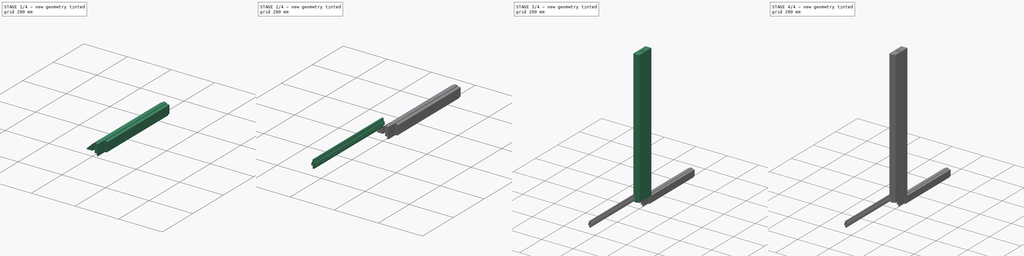
[diagram: build sequence overview — one tinted view per stage of 4, left to right]
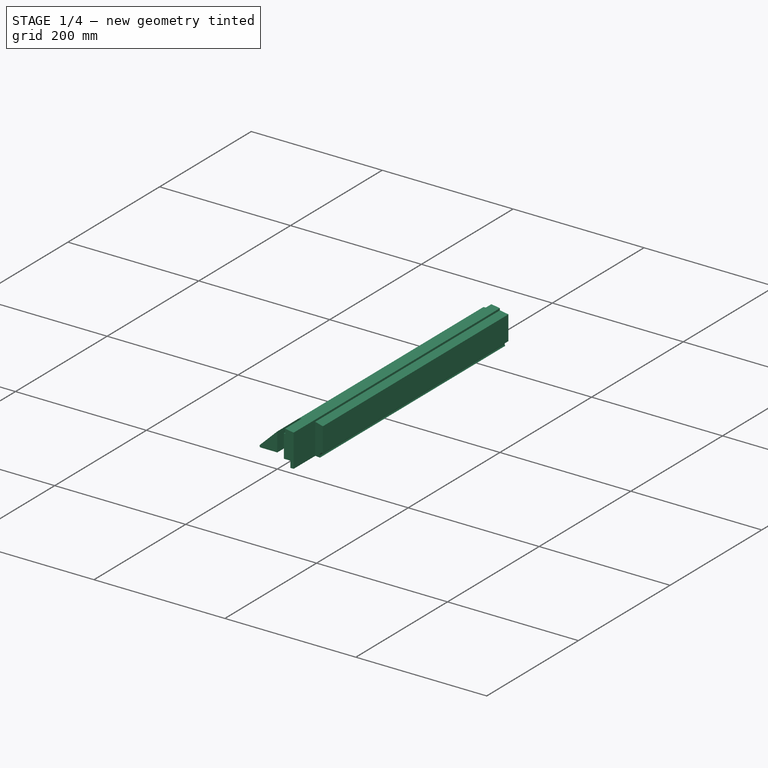
[diagram: stage 1 of 4 — iso view after this stage's code; geometry added in this stage tinted green]
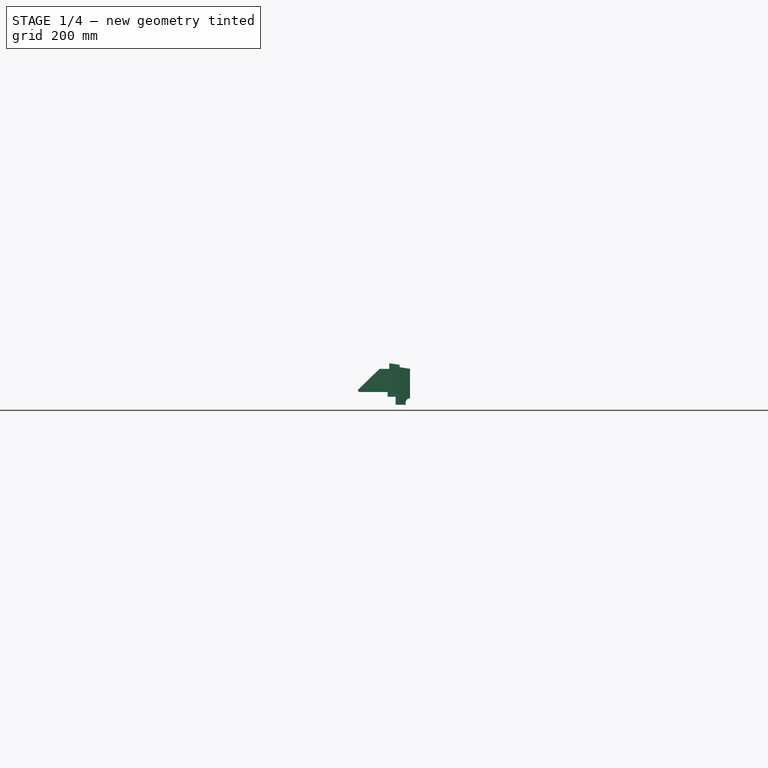
[diagram: stage 1 of 4 — front view after this stage's code; geometry added in this stage tinted green]
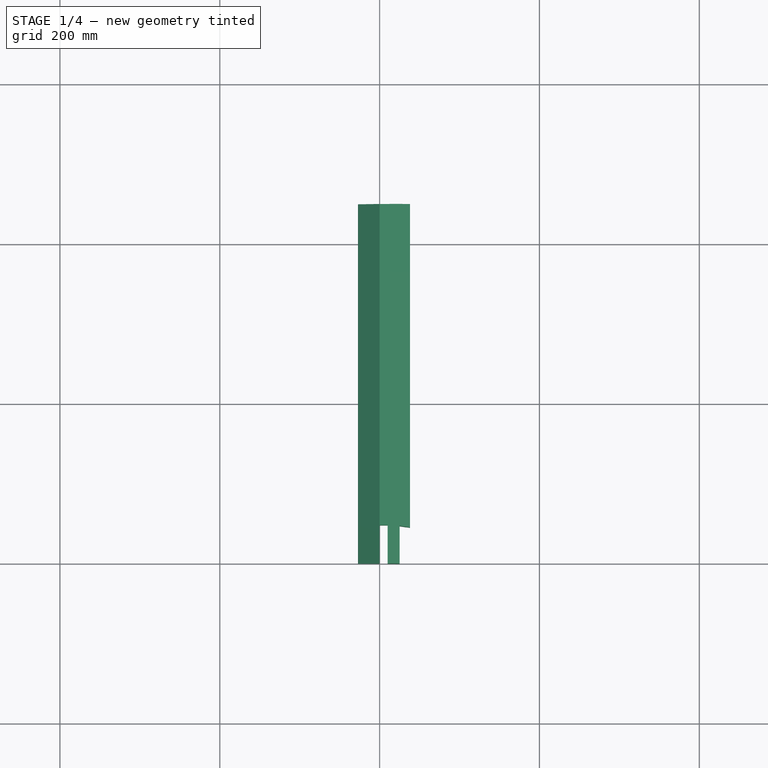
[diagram: stage 1 of 4 — top view after this stage's code; geometry added in this stage tinted green]
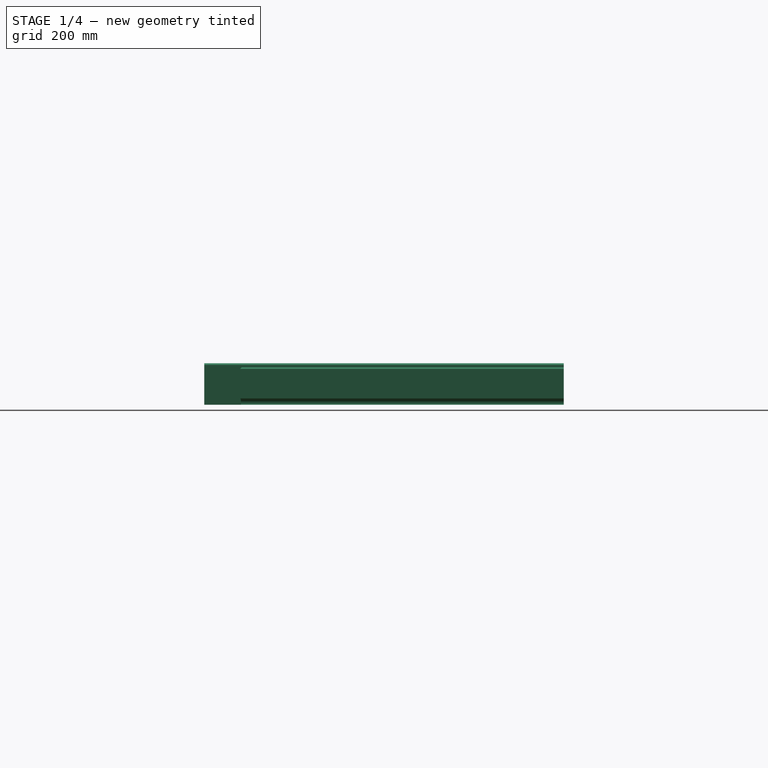
[diagram: stage 1 of 4 — right view after this stage's code; geometry added in this stage tinted green]
FCSTD DOCUMENT  (FreeCAD 2022.709R28846 (Git))
Label: window_part
License: All rights reserved
LicenseURL: http://en.wikipedia.org/wiki/All_rights_reserved
objects: PartDesign::CoordinateSystem×17, Sketcher::SketchObject×11, PartDesign::Body×7, App::Part×7, PartDesign::Pad×6, PartDesign::Pocket×4, PartDesign::Mirrored×2, PartDesign::Revolution×1
note: 74 computed .brp shape members not serialized (recipe doc carries the construction recipe); baked Part::Feature solids carry a one-line shape summary decoded from their .brp

FEATURE [PartDesign::Body] sprosse
  AutoGroupSolids = false
  ClaimAllChildren = false
  ExportMode = 0
  Group = -> [LCS_0005,Sketch007,Pad004,Mirrored]
  Origin = -> Origin
  Tip = -> Mirrored
  TreeRank = 212
  _ExportChildren = -> [LCS_0005,Pad004,Mirrored]
  _GroupVersion = 1
FEATURE [App::Part] Part_2  label="sprosse001"
  ClaimAllChildren = false
  ExportMode = 1
  Group = -> [LCS_0,sprosse]
  Origin = -> Origin011
  TreeRank = 200
  _ExportChildren = -> [LCS_0,sprosse]
  _GroupVersion = 1
FEATURE [Sketcher::SketchObject] Sketch008
  ArcFitTolerance = 1e-06
  AttachmentOffset = pos=(0,0,0) rot=(1,0,0;1.5708rad)
  AttachmentSupport = -> [XZ_Plane013]
  FullyConstrained = true
  MapMode = 4
  Placement = pos=(0,0,0) rot=(0.57735,0.57735,0.57735;4.18879rad)
  Support = -> [XZ_Plane013]
  TreeRank = 233
  sketch-geometry (15):
    g0: LineSegment StartX=0 StartY=0 StartZ=0 EndX=0 EndY=12 EndZ=0
    g1: LineSegment StartX=0 StartY=12 StartZ=0 EndX=7 EndY=12 EndZ=0
    g2: LineSegment StartX=7 StartY=12 StartZ=0 EndX=5 EndY=25 EndZ=0
    g3: LineSegment StartX=5 StartY=25 StartZ=0 EndX=2 EndY=25 EndZ=0
    g4: LineSegment StartX=2 StartY=25 StartZ=0 EndX=0 EndY=38 EndZ=0
    g5: LineSegment StartX=-1e-16 StartY=38 StartZ=0 EndX=-37 EndY=38 EndZ=0
    g6: ArcOfCircle CenterX=-42.5625 CenterY=38 CenterZ=0 NormalX=0 NormalY=0 NormalZ=1 AngleXU=0 Radius=5.5625 StartAngle=4.25879 EndAngle=6.28319
    g7: LineSegment StartX=-45 StartY=33 StartZ=0 EndX=-45 EndY=20 EndZ=0
    g8: LineSegment StartX=-45 StartY=20 StartZ=0 EndX=-35 EndY=20 EndZ=0
    g9: LineSegment StartX=-35 StartY=20 StartZ=0 EndX=-35 EndY=10 EndZ=0
    g10: LineSegment StartX=-35 StartY=10 StartZ=0 EndX=-29 EndY=10 EndZ=0
    g11: LineSegment StartX=-29 StartY=10 StartZ=0 EndX=-29 EndY=-25.0534 EndZ=0
    g12: LineSegment StartX=-25.562 StartY=-26.4435 StartZ=0 EndX=0 EndY=0 EndZ=0
    g13: ArcOfCircle CenterX=-27 CenterY=-25.0534 CenterZ=0 NormalX=0 NormalY=0 NormalZ=1 AngleXU=0 Radius=2 StartAngle=3.14159 EndAngle=5.51473
    g14: GeomPoint [constr] X=-29 Y=-30 Z=0
  constraints (42):
    c: Vertical(g0)
    c: Coincident(g0,g1)
    c: Horizontal(g1)
    c: Coincident(g1,g2)
    c: Coincident(g2,g3)
    c: Coincident(g3,g4)
    c: Coincident(g4,g5)
    c: Horizontal(g5)
    c: Perpendicular(g5,g6) = 4.71239
    c: Coincident(g6,g7)
    c: Coincident(g7,g8)
    c: Coincident(g8,g9)
    c: Vertical(g9)
    c: Coincident(g9,g10)
    c: Horizontal(g10)
    c: Coincident(g10,g11)
    c: Vertical(g11)
    c: Vertical(g7)
    c: Horizontal(g8)
    c: DistanceY(g4,g4) = 13
    c: DistanceY(g2,g2) = 13
    c: DistanceY(g0,g0) = 12
    c: DistanceX(g3,g3) = 3
    c: DistanceX(g4,g4) = 2
    c: DistanceX(g2,g2) = 2
    c: DistanceX(g1,g1) = 7
    c: Coincident(g0,g-1)
    c: Coincident(g12,g0)
    c: DistanceX(g8,g8) = 10
    c: DistanceX(g10,g10) = 6
    c: DistanceY(g9,g9) = 10
    c: Horizontal(g3)
    c: DistanceY(g0,g10) = 10
    c: DistanceX(g6,g5) = 8
    c: DistanceY(g6,g5) = 5
    c: DistanceX(g6,g4) = 45
    c: DistanceY(g14,g0) = 30
    c: PointOnObject(g14,g11)
    c: PointOnObject(g14,g12)
    c: Tangent(g11,g13) = -1.5708
    c: Tangent(g12,g13) = -1.5708
    c: Radius(g13) = 2
FEATURE [PartDesign::Pad] Pad005
  ClaimChildren = false
  Direction = (1,1,1)
  Fit = 0
  FitJoin = 0
  InnerFit = 0
  InnerFitJoin = 0
  InnerTaperAngle = 0
  InnerTaperAngleRev = 0
  Length = 450
  Length2 = 100
  Linearize = true
  NewSolid = false
  Placement = pos=(0,0,0) rot=(1,0,0;1.5708rad)
  Profile = -> Sketch008
  Suppress = false
  TreeRank = 234
  Type = 0
  _ProfileBasedVersion = 1
FEATURE [Sketcher::SketchObject] Sketch010
  ArcFitTolerance = 1e-06
  AttachmentOffset = pos=(0,0,10) rot=(0,0,1;0rad)
  AttachmentSupport = -> [XY_Plane013]
  FullyConstrained = true
  MapMode = 2
  Placement = pos=(0,0,10) rot=(0,0,1;0rad)
  Support = -> [XY_Plane013]
  TreeRank = 254
  sketch-geometry (7):
    g0: LineSegment StartX=25 StartY=0 StartZ=0 EndX=25 EndY=47.1538 EndZ=0
    g1: LineSegment StartX=25 StartY=47.1538 StartZ=0 EndX=39 EndY=45 EndZ=0
    g2: LineSegment StartX=39 StartY=45 StartZ=0 EndX=39 EndY=0 EndZ=0
    g3: LineSegment StartX=39 StartY=0 StartZ=0 EndX=25 EndY=0 EndZ=0
    g4: LineSegment [constr] StartX=39 StartY=45 StartZ=0 EndX=25 EndY=45 EndZ=0
    g5: GeomPoint [constr] X=26 Y=45 Z=0
    g6: GeomPoint [constr] X=26 Y=47 Z=0
  constraints (19):
    c: PointOnObject(g0,g-1)
    c: Vertical(g0)
    c: Coincident(g0,g1)
    c: Coincident(g1,g2)
    c: PointOnObject(g2,g-1)
    c: Vertical(g2)
    c: Coincident(g2,g3)
    c: Coincident(g3,g0)
    c: DistanceX(g3,g3) = 14
    c: DistanceY(g2,g2) = 45
    c: DistanceX(g-1,g0) = 25
    c: Coincident(g4,g1)
    c: PointOnObject(g4,g0)
    c: Horizontal(g4)
    c: PointOnObject(g5,g4)
    c: DistanceX(g5,g1) = 13
    c: PointOnObject(g6,g1)
    c: DistanceY(g5,g6) = 2
    c: Vertical(g5,g6)
FEATURE [PartDesign::Pocket] Pocket002
  BaseFeature = -> Pad005
  ClaimChildren = false
  Fit = 0
  FitJoin = 0
  InnerFit = 0
  InnerFitJoin = 0
  InnerTaperAngle = 0
  InnerTaperAngleRev = 0
  Length = 60
  Length2 = 100
  Linearize = true
  NewSolid = false
  Placement = pos=(0,0,0) rot=(1,0,0;1.5708rad)
  Profile = -> Sketch010
  Suppress = false
  TreeRank = 255
  Type = 0
  _ProfileBasedVersion = 1
FEATURE [Sketcher::SketchObject] Sketch011
  ArcFitTolerance = 1e-06
  AttachmentOffset = pos=(0,0,10) rot=(0,0,1;0rad)
  AttachmentSupport = -> [XY_Plane013]
  FullyConstrained = true
  MapMode = 2
  Placement = pos=(0,0,10) rot=(0,0,1;0rad)
  Support = -> [XY_Plane013]
  TreeRank = 256
  sketch-geometry (4):
    g0: LineSegment StartX=0 StartY=0 StartZ=0 EndX=10 EndY=0 EndZ=0
    g1: LineSegment StartX=10 StartY=0 StartZ=0 EndX=10 EndY=48 EndZ=0
    g2: LineSegment StartX=10 StartY=48 StartZ=0 EndX=0 EndY=48 EndZ=0
    g3: LineSegment StartX=0 StartY=48 StartZ=0 EndX=0 EndY=0 EndZ=0
  constraints (11):
    c: Coincident(g0,g1)
    c: Coincident(g1,g2)
    c: Coincident(g2,g3)
    c: Coincident(g3,g0)
    c: Horizontal(g0)
    c: Horizontal(g2)
    c: Vertical(g1)
    c: Vertical(g3)
    c: Coincident(g0,g-1)
    c: DistanceX(g0,g0) = 10
    c: DistanceY(g3,g3) = 48
FEATURE [PartDesign::Pocket] Pocket003
  BaseFeature = -> Pocket002
  ClaimChildren = false
  Fit = 0
  FitJoin = 0
  InnerFit = 0
  InnerFitJoin = 0
  InnerTaperAngle = 0
  InnerTaperAngleRev = 0
  Length = 60
  Length2 = 100
  Linearize = true
  NewSolid = false
  Placement = pos=(0,0,0) rot=(1,0,0;1.5708rad)
  Profile = -> Sketch011
  Suppress = false
  TreeRank = 257
  Type = 0
  _ProfileBasedVersion = 1
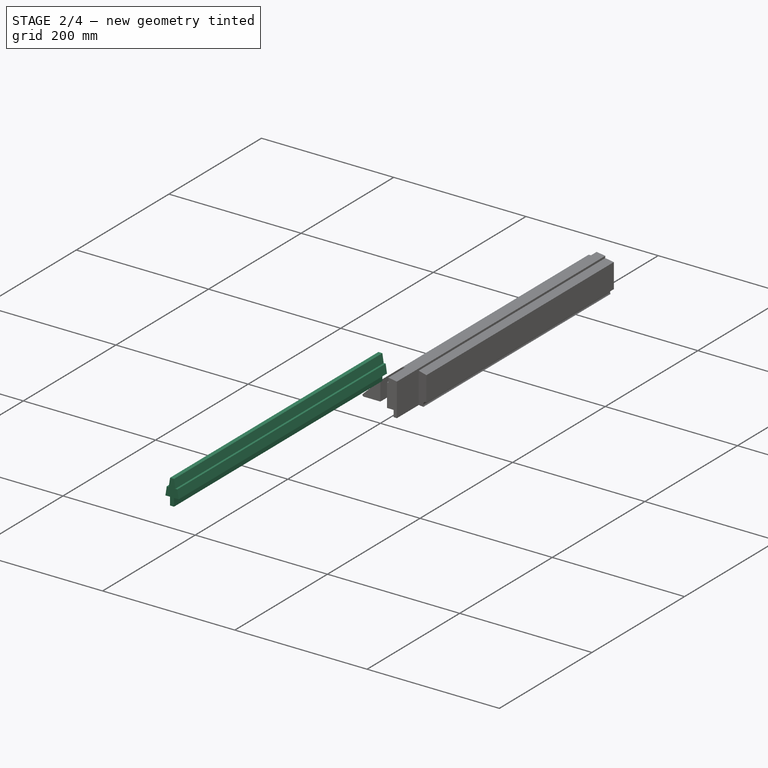
[diagram: stage 2 of 4 — iso view after this stage's code; geometry added in this stage tinted green]
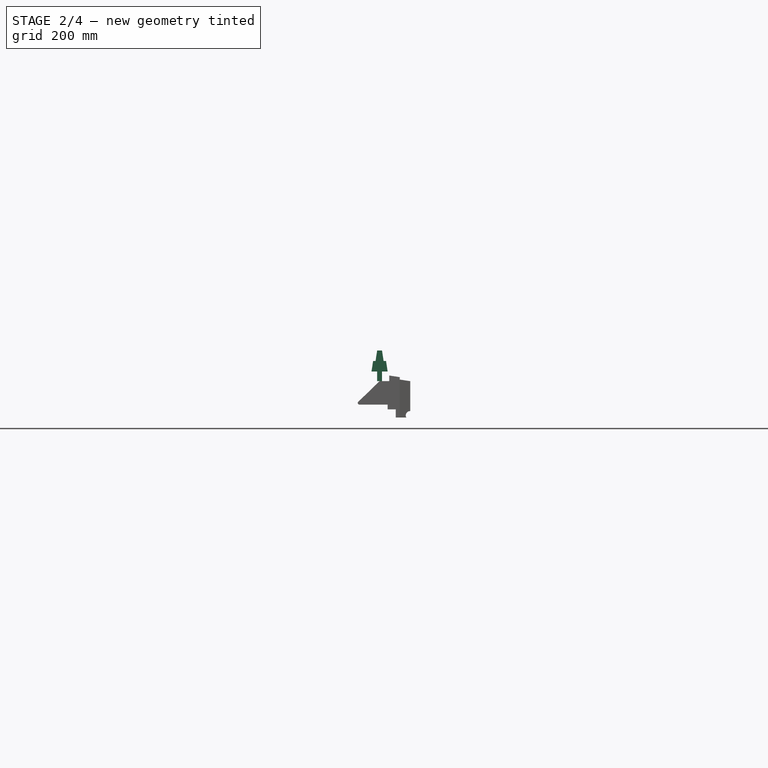
[diagram: stage 2 of 4 — front view after this stage's code; geometry added in this stage tinted green]
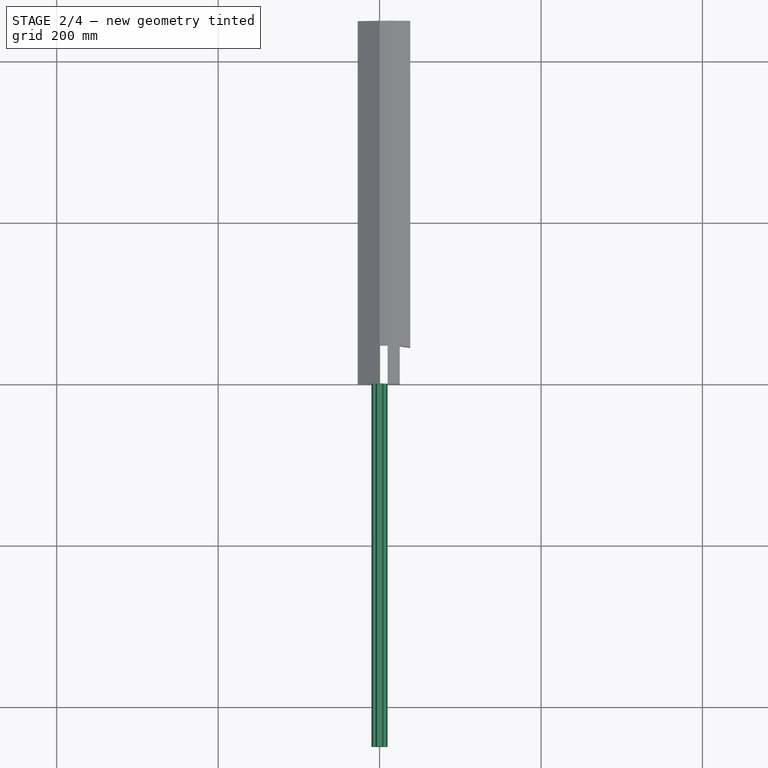
[diagram: stage 2 of 4 — top view after this stage's code; geometry added in this stage tinted green]
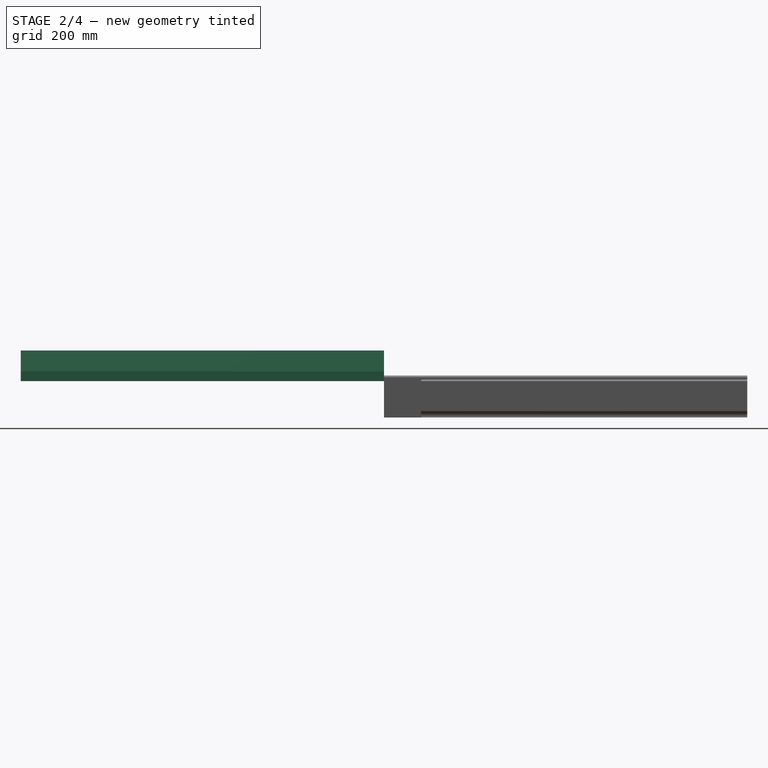
[diagram: stage 2 of 4 — right view after this stage's code; geometry added in this stage tinted green]
FEATURE [PartDesign::Body] Body004  label="blendrahmen_hinternute"
  AutoGroupSolids = false
  ClaimAllChildren = false
  ExportMode = 0
  Group = -> [Pad003,Pocket001,Sketch005,Sketch006]
  Origin = -> Origin005
  Tip = -> Pocket001
  TreeRank = 88
  _ExportChildren = -> [Pad003,Pocket001]
  _GroupVersion = 1
FEATURE [PartDesign::CoordinateSystem] LCS_0001
  AttacherType = Attacher::AttachEngine3D
  AttachmentSupport = -> [X_Axis006]
  MapMode = 2
  Support = -> [X_Axis006]
  TreeRank = 109
FEATURE [PartDesign::CoordinateSystem] LCS_0002
  AttacherType = Attacher::AttachEngine3D
  AttachmentSupport = -> [X_Axis007]
  MapMode = 2
  Support = -> [X_Axis007]
  TreeRank = 122
FEATURE [PartDesign::CoordinateSystem] LCS_0003
  AttacherType = Attacher::AttachEngine3D
  AttachmentSupport = -> [X_Axis008]
  MapMode = 2
  Support = -> [X_Axis008]
  TreeRank = 135
FEATURE [PartDesign::CoordinateSystem] LCS_0004
  AttacherType = Attacher::AttachEngine3D
  AttachmentSupport = -> [X_Axis009]
  MapMode = 2
  Support = -> [X_Axis009]
  TreeRank = 148
FEATURE [PartDesign::CoordinateSystem] LCS_1
  AttacherType = Attacher::AttachEngine3D
  AttachmentSupport = -> [Pad]
  MapMode = 11
  Placement = pos=(0,0,90) rot=(0,0,1;1.5708rad)
  Support = -> [Pad]
  TreeRank = 177
FEATURE [App::Part] fischband_pin  label="fischband_pin001"
  ClaimAllChildren = false
  ExportMode = 1
  Group = -> [LCS_0001,Body001,LCS_1]
  Origin = -> Origin007
  TreeRank = 119
  _ExportChildren = -> [LCS_0001,Body001,LCS_1]
  _GroupVersion = 1
FEATURE [PartDesign::CoordinateSystem] LCS_2
  AttacherType = Attacher::AttachEngine3D
  AttachmentSupport = -> [Pad001]
  MapMode = 11
  Placement = pos=(0,0,45) rot=(0,0,1;1.5708rad)
  Support = -> [Pad001]
  TreeRank = 178
FEATURE [PartDesign::CoordinateSystem] LCS_3
  AttacherType = Attacher::AttachEngine3D
  AttachmentSupport = -> [Revolution]
  MapMode = 11
  Placement = pos=(0,0,0) rot=(0.707107,-0.707107,0;3.14159rad)
  Support = -> [Revolution]
  TreeRank = 179
FEATURE [App::Part] fischband_zierelement  label="fischband_zierelement001"
  ClaimAllChildren = false
  ExportMode = 1
  Group = -> [Body,LCS_3]
  Origin = -> Origin006
  TreeRank = 106
  _ExportChildren = -> [Body,LCS_3]
  _GroupVersion = 1
FEATURE [PartDesign::CoordinateSystem] LCS_4
  AttacherType = Attacher::AttachEngine3D
  AttachmentSupport = -> [Pocket]
  MapMode = 5
  Placement = pos=(0,-19,4.2e-15) rot=(0,0.707107,0.707107;3.14159rad)
  Support = -> [Pocket]
  TreeRank = 180
FEATURE [PartDesign::CoordinateSystem] LCS_5
  AttacherType = Attacher::AttachEngine3D
  AttachmentSupport = -> [Pocket001]
  MapMode = 5
  Placement = pos=(18,0,0) rot=(0.57735,0.57735,0.57735;2.0944rad)
  Support = -> [Pocket001]
  TreeRank = 181
FEATURE [PartDesign::CoordinateSystem] LCS_6
  AttacherType = Attacher::AttachEngine3D
  AttachmentSupport = -> [Pad001]
  MapMode = 5
  Placement = pos=(25.5,0,0) rot=(0.57735,0.57735,0.57735;2.0944rad)
  Support = -> [Pad001]
  TreeRank = 182
FEATURE [PartDesign::CoordinateSystem] LCS_7
  AttacherType = Attacher::AttachEngine3D
  AttachmentSupport = -> [Pad001]
  MapMode = 1
  Placement = pos=(25.5,5.5,45) rot=(0,0,1;0rad)
  Support = -> [Pad001]
  TreeRank = 183
FEATURE [PartDesign::CoordinateSystem] LCS_8
  AttacherType = Attacher::AttachEngine3D
  AttachmentSupport = -> [Pad001]
  MapMode = 1
  Placement = pos=(25.5,3.5,0) rot=(0,0,1;0rad)
  Support = -> [Pad001]
  TreeRank = 184
FEATURE [App::Part] fischband_fluegel  label="fischband_fluegel001"
  ClaimAllChildren = false
  ExportMode = 1
  Group = -> [LCS_0002,Body002,LCS_2,LCS_6,LCS_7,LCS_8]
  Origin = -> Origin008
  TreeRank = 132
  _ExportChildren = -> [LCS_0002,Body002,LCS_2,LCS_6,LCS_7,LCS_8]
  _GroupVersion = 1
FEATURE [PartDesign::CoordinateSystem] LCS_9
  AttacherType = Attacher::AttachEngine3D
  AttachmentSupport = -> [Pocket001]
  MapMode = 1
  Placement = pos=(18,11,80) rot=(0,0,1;0rad)
  Support = -> [Pocket001]
  TreeRank = 185
FEATURE [PartDesign::CoordinateSystem] LCS_10
  AttacherType = Attacher::AttachEngine3D
  AttachmentSupport = -> [Pocket001]
  MapMode = 1
  Placement = pos=(18,13,35) rot=(0,0,1;0rad)
  Support = -> [Pocket001]
  TreeRank = 186
FEATURE [App::Part] blendrahmen_hinternute  label="blendrahmen_hinternute001"
  ClaimAllChildren = false
  ExportMode = 1
  Group = -> [LCS_0003,Body004,LCS_5,LCS_9,LCS_10]
  Origin = -> Origin009
  TreeRank = 145
  _ExportChildren = -> [LCS_0003,Body004,LCS_5,LCS_9,LCS_10]
  _GroupVersion = 1
FEATURE [PartDesign::CoordinateSystem] LCS_11
  AttacherType = Attacher::AttachEngine3D
  AttachmentSupport = -> [Pocket]
  MapMode = 1
  Placement = pos=(22,-19,80) rot=(0,0,1;0rad)
  Support = -> [Pocket]
  TreeRank = 187
FEATURE [App::Part] fensterrrahmen_hinternute  label="fensterrahmen_hinternute001"
  ClaimAllChildren = false
  ExportMode = 1
  Group = -> [LCS_0004,Body003,LCS_4,LCS_11]
  Origin = -> Origin010
  TreeRank = 158
  _ExportChildren = -> [LCS_0004,Body003,LCS_4,LCS_11]
  _GroupVersion = 1
FEATURE [PartDesign::CoordinateSystem] LCS_0
  AttacherType = Attacher::AttachEngine3D
  AttachmentSupport = -> [X_Axis011]
  MapMode = 2
  Support = -> [X_Axis011]
  TreeRank = 190
FEATURE [PartDesign::CoordinateSystem] LCS_0005
  AttacherType = Attacher::AttachEngine3D
  AttachmentSupport = -> [X_Axis012]
  MapMode = 2
  Support = -> [X_Axis012]
  TreeRank = 210
FEATURE [Sketcher::SketchObject] Sketch007
  ArcFitTolerance = 1e-06
  AttachmentSupport = -> [XZ_Plane012]
  FullyConstrained = true
  MapMode = 2
  Placement = pos=(0,0,0) rot=(1,0,0;1.5708rad)
  Support = -> [XZ_Plane012]
  TreeRank = 213
  sketch-geometry (8):
    g0: LineSegment StartX=0 StartY=0 StartZ=0 EndX=3 EndY=0 EndZ=0
    g1: LineSegment StartX=3 StartY=0 StartZ=0 EndX=3 EndY=12 EndZ=0
    g2: LineSegment StartX=3 StartY=12 StartZ=0 EndX=10 EndY=12 EndZ=0
    g3: LineSegment StartX=10 StartY=12 StartZ=0 EndX=8 EndY=25 EndZ=0
    g4: LineSegment StartX=8 StartY=25 StartZ=0 EndX=5 EndY=25 EndZ=0
    g5: LineSegment StartX=5 StartY=25 StartZ=0 EndX=3 EndY=38 EndZ=0
    g6: LineSegment StartX=3 StartY=38 StartZ=0 EndX=0 EndY=38 EndZ=0
    g7: LineSegment StartX=0 StartY=38 StartZ=0 EndX=0 EndY=0 EndZ=0
  constraints (23):
    c: Coincident(g-1,g0)
    c: PointOnObject(g0,g-1)
    c: Coincident(g0,g1)
    c: Vertical(g1)
    c: Coincident(g1,g2)
    c: Horizontal(g2)
    c: Coincident(g2,g3)
    c: Coincident(g3,g4)
    c: Horizontal(g4)
    c: Coincident(g4,g5)
    c: Coincident(g5,g6)
    c: PointOnObject(g6,g-2)
    c: Horizontal(g6)
    c: Coincident(g6,g7)
    c: Coincident(g7,g0)
    c: DistanceX(g5,g4) = 2
    c: DistanceX(g3,g3) = 2
    c: DistanceX(g4,g4) = 3
    c: DistanceY(g5,g5) = 13
    c: DistanceY(g3,g3) = 13
    c: DistanceX(g6,g6) = 3
    c: DistanceY(g1,g1) = 12
    c: DistanceX(g2,g2) = 7
FEATURE [PartDesign::Pad] Pad004
  ClaimChildren = false
  Direction = (1,1,1)
  Fit = 0
  FitJoin = 0
  InnerFit = 0
  InnerFitJoin = 0
  InnerTaperAngle = 0
  InnerTaperAngleRev = 0
  Length = 450
  Length2 = 100
  Linearize = true
  NewSolid = false
  Placement = pos=(0,0,0) rot=(1,0,0;1.5708rad)
  Profile = -> Sketch007
  Suppress = false
  TreeRank = 214
  Type = 0
  _ProfileBasedVersion = 1
FEATURE [PartDesign::Mirrored] Mirrored
  BaseFeature = -> Pad004
  CopyShape = false
  MirrorPlane = -> Sketch007 [V_Axis]
  NewSolid = false
  OriginalSubs = -> [Pad004]
  Originals = -> [Pad004]
  ParallelTransform = true
  Placement = pos=(0,0,0) rot=(1,0,0;1.5708rad)
  SubTransform = true
  Suppress = false
  TreeRank = 215
FEATURE [PartDesign::Body] Body005  label="fluegelwetterschenkel"
  AutoGroupSolids = false
  ClaimAllChildren = false
  ExportMode = 0
  Group = -> [Sketch008,Pad005,Sketch010,Pocket002,Sketch011,Pocket003]
  Origin = -> Origin013
  Tip = -> Pocket003
  TreeRank = 232
  _ExportChildren = -> [Pad005,Pocket002,Pocket003]
  _GroupVersion = 1
FEATURE [App::Part] Part  label="fluegelwetterschenkel001"
  ClaimAllChildren = false
  ExportMode = 1
  Group = -> [Body005]
  Origin = -> Origin012
  TreeRank = 220
  _ExportChildren = -> [Body005]
  _GroupVersion = 1
FEATURE [PartDesign::Mirrored] Mirrored001
  BaseFeature = -> Pocket003
  CopyShape = false
  MirrorPlane = -> Sketch011 [H_Axis]
  NewSolid = false
  OriginalSubs = -> [Pocket003,Pocket002]
  Originals = -> [Pocket003,Pocket002]
  ParallelTransform = true
  Placement = pos=(0,0,0) rot=(1,0,0;1.5708rad)
  SubTransform = true
  Suppress = false
  TreeRank = 258
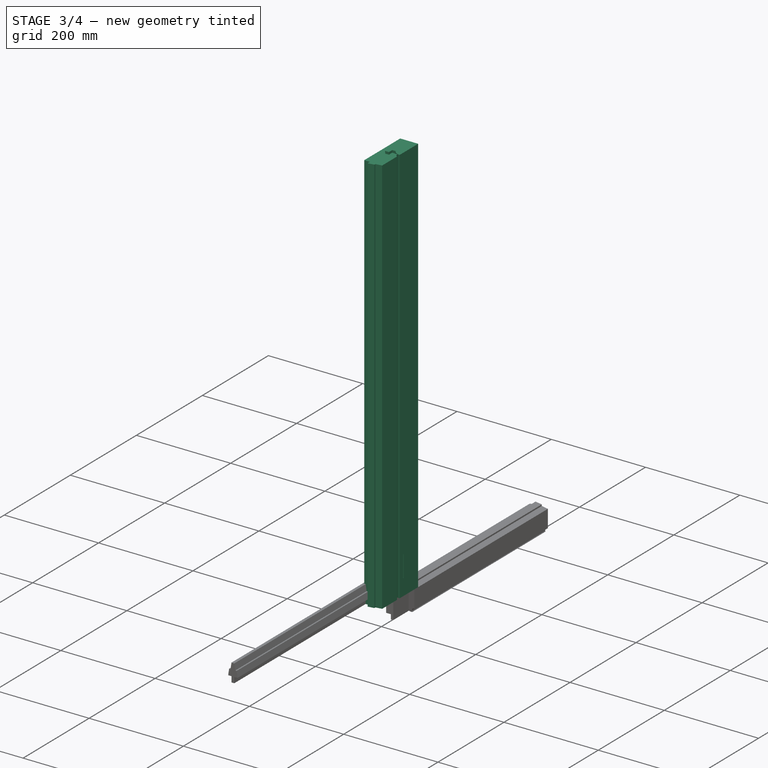
[diagram: stage 3 of 4 — iso view after this stage's code; geometry added in this stage tinted green]
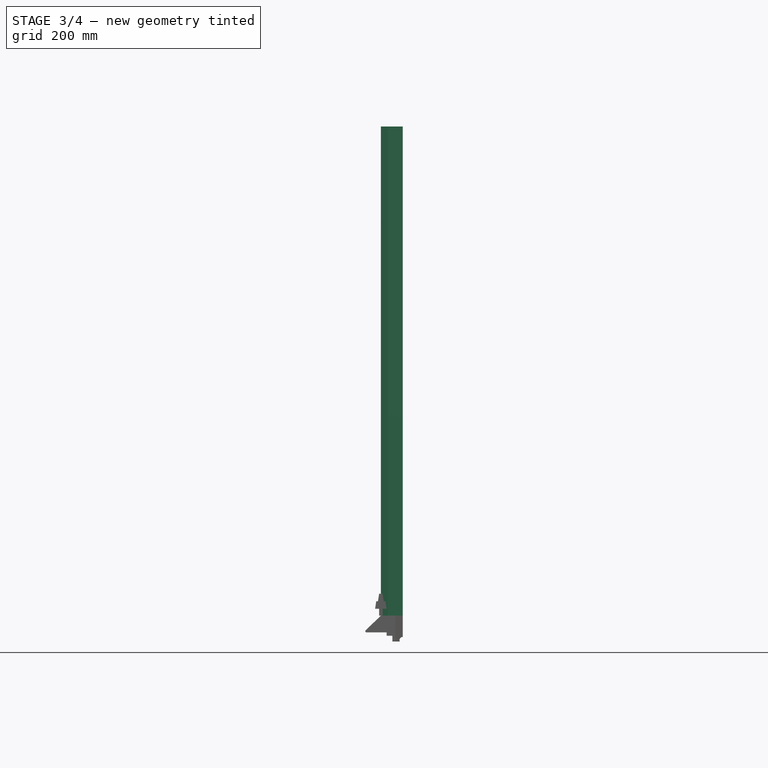
[diagram: stage 3 of 4 — front view after this stage's code; geometry added in this stage tinted green]
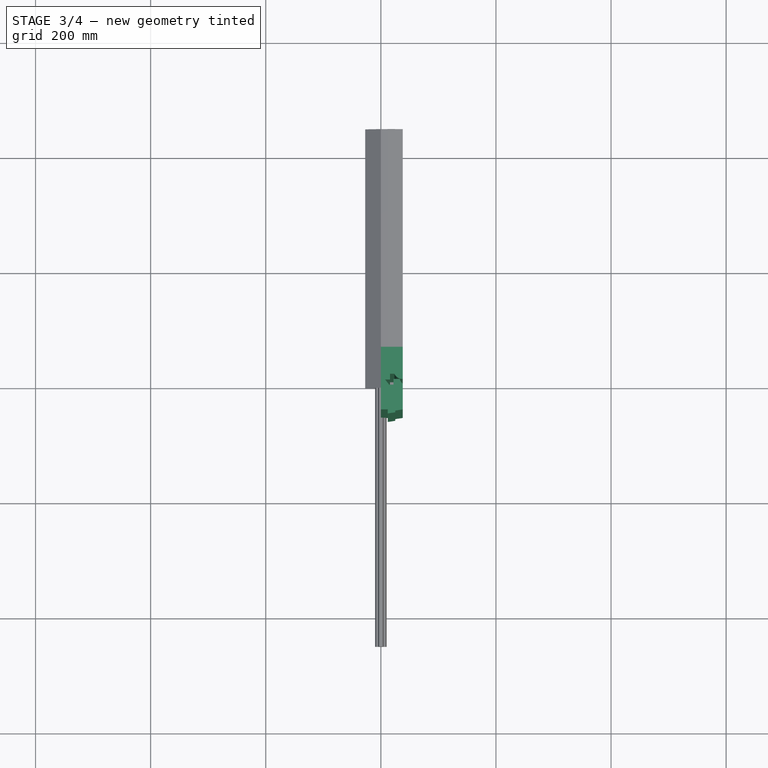
[diagram: stage 3 of 4 — top view after this stage's code; geometry added in this stage tinted green]
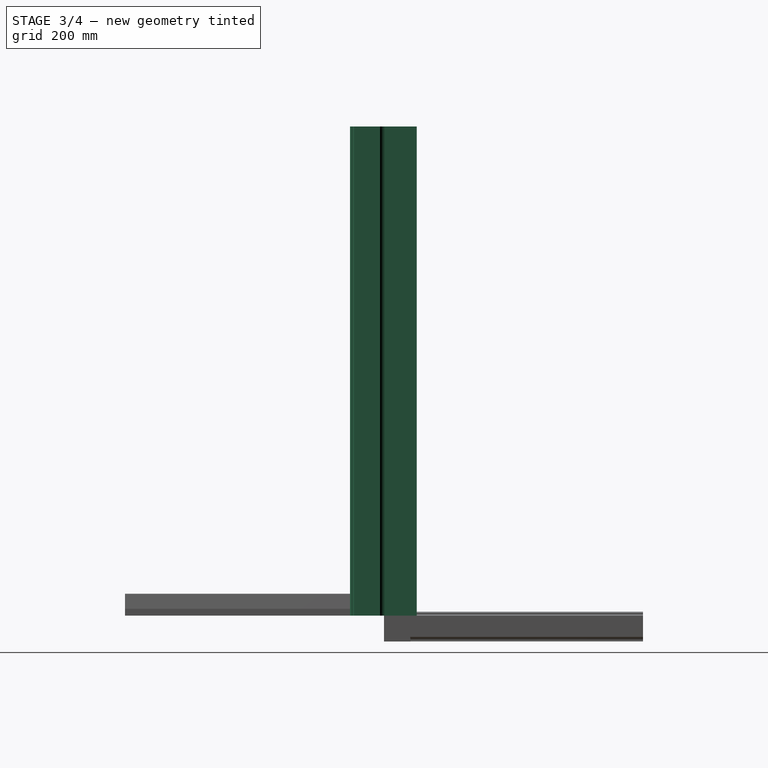
[diagram: stage 3 of 4 — right view after this stage's code; geometry added in this stage tinted green]
FEATURE [PartDesign::Body] Body002  label="fischband_fluegel"
  AutoGroupSolids = false
  ClaimAllChildren = false
  ExportMode = 0
  Group = -> [Sketch002,Pad001]
  Origin = -> Origin003
  Tip = -> Pad001
  TreeRank = 54
  _ExportChildren = -> [Pad001]
  _GroupVersion = 1
FEATURE [Sketcher::SketchObject] Sketch003
  ArcFitTolerance = 1e-06
  AttachmentSupport = -> [XY_Plane003]
  FullyConstrained = true
  MapMode = 5
  Support = -> [XY_Plane003]
  TreeRank = 13
  sketch-geometry (13):
    g0: LineSegment StartX=0 StartY=0 StartZ=0 EndX=7.5 EndY=0 EndZ=0
    g1: LineSegment StartX=7.5 StartY=0 StartZ=0 EndX=14.5 EndY=-9 EndZ=0
    g2: LineSegment StartX=14.5 StartY=-9 StartZ=0 EndX=22 EndY=-9 EndZ=0
    g3: LineSegment StartX=22 StartY=-9 StartZ=0 EndX=22 EndY=1 EndZ=0
    g4: LineSegment StartX=22 StartY=1 StartZ=0 EndX=33 EndY=1 EndZ=0
    g5: ArcOfCircle CenterX=44.8568 CenterY=2.84803 CenterZ=0 NormalX=0 NormalY=0 NormalZ=1 AngleXU=0 Radius=12 StartAngle=3.29621 EndAngle=4.10417
    g6: LineSegment StartX=38 StartY=-7 StartZ=0 EndX=38 EndY=-52 EndZ=0
    g7: LineSegment StartX=38 StartY=-52 StartZ=0 EndX=25 EndY=-54 EndZ=0
    g8: LineSegment StartX=25 StartY=-54 StartZ=0 EndX=25 EndY=-57 EndZ=0
    g9: LineSegment StartX=25 StartY=-57 StartZ=0 EndX=12 EndY=-59 EndZ=0
    g10: LineSegment StartX=12 StartY=-59 StartZ=0 EndX=12 EndY=-52 EndZ=0
    g11: LineSegment StartX=12 StartY=-52 StartZ=0 EndX=0 EndY=-52 EndZ=0
    g12: LineSegment StartX=0 StartY=-52 StartZ=0 EndX=0 EndY=0 EndZ=0
  constraints (39):
    c: Coincident(g-1,g0)
    c: PointOnObject(g0,g-1)
    c: Coincident(g0,g1)
    c: Coincident(g1,g2)
    c: Horizontal(g2)
    c: Coincident(g2,g3)
    c: Vertical(g3)
    c: Coincident(g3,g4)
    c: Horizontal(g4)
    c: Coincident(g5,g6)
    c: Vertical(g6)
    c: Coincident(g6,g7)
    c: Coincident(g7,g8)
    c: Vertical(g8)
    c: Coincident(g8,g9)
    c: Coincident(g9,g10)
    c: Vertical(g10)
    c: Coincident(g10,g11)
    c: PointOnObject(g11,g-2)
    c: Horizontal(g11)
    c: Coincident(g11,g12)
    c: Coincident(g12,g0)
    c: DistanceX(g11,g11) = 12
    c: DistanceX(g9,g9) = 13
    c: DistanceX(g0,g0) = 7.5
    c: Equal(g2,g0)
    c: DistanceY(g0,g3) = 1
    c: Radius(g5) = 12
    c: DistanceX(g4,g5) = 5
    c: Coincident(g5,g4)
    c: DistanceY(g5,g4) = 8
    c: DistanceY(g6,g5) = 45
    c: DistanceY(g7,g6) = 2
    c: DistanceY(g8,g7) = 3
    c: DistanceY(g9,g8) = 2
    c: DistanceX(g0,g3) = 22
    c: DistanceX(g7,g6) = 13
    c: DistanceY(g9,g10) = 7
    c: DistanceY(g2,g3) = 10
FEATURE [PartDesign::Pad] Pad002
  ClaimChildren = false
  Direction = (1,1,1)
  Fit = 0
  FitJoin = 0
  InnerFit = 0
  InnerFitJoin = 0
  InnerTaperAngle = 0
  InnerTaperAngleRev = 0
  Length = 850
  Length2 = 100
  Linearize = true
  NewSolid = false
  Profile = -> Sketch003
  Suppress = false
  TreeRank = 74
  Type = 0
  _ProfileBasedVersion = 1
FEATURE [Sketcher::SketchObject] Sketch004
  ArcFitTolerance = 1e-06
  AttachmentSupport = -> [Pad002]
  ExternalGeometry = -> [Pad002]
  FullyConstrained = true
  MapMode = 5
  Placement = pos=(0,1,0) rot=(0,0.707107,0.707107;3.14159rad)
  Support = -> [Pad002]
  TreeRank = 75
  sketch-geometry (4):
    g0: LineSegment StartX=-22 StartY=125 StartZ=0 EndX=-24 EndY=125 EndZ=0
    g1: LineSegment StartX=-24 StartY=125 StartZ=0 EndX=-24 EndY=80 EndZ=0
    g2: LineSegment StartX=-24 StartY=80 StartZ=0 EndX=-22 EndY=80 EndZ=0
    g3: LineSegment StartX=-22 StartY=80 StartZ=0 EndX=-22 EndY=125 EndZ=0
  constraints (12):
    c: Coincident(g0,g1)
    c: Coincident(g1,g2)
    c: Coincident(g2,g3)
    c: Coincident(g3,g0)
    c: Horizontal(g0)
    c: Horizontal(g2)
    c: Vertical(g1)
    c: Vertical(g3)
    c: DistanceY(g-1,g0) = 125
    c: DistanceX(g2,g2) = 2
    c: DistanceY(g1,g1) = 45
    c: PointOnObject(g2,g-3)
FEATURE [PartDesign::Pocket] Pocket
  BaseFeature = -> Pad002
  ClaimChildren = false
  Fit = 0
  FitJoin = 0
  InnerFit = 0
  InnerFitJoin = 0
  InnerTaperAngle = 0
  InnerTaperAngleRev = 0
  Length = 20
  Length2 = 100
  Linearize = true
  NewSolid = false
  Profile = -> Sketch004
  Suppress = false
  TreeRank = 76
  Type = 0
  _ProfileBasedVersion = 1
FEATURE [PartDesign::Body] Body003  label="fensterrahmen_hinternute"
  AutoGroupSolids = false
  ClaimAllChildren = false
  ExportMode = 0
  Group = -> [Pad002,Sketch003,Sketch004,Pocket]
  Origin = -> Origin004
  Tip = -> Pocket
  TreeRank = 70
  _ExportChildren = -> [Pad002,Pocket]
  _GroupVersion = 1
FEATURE [Sketcher::SketchObject] Sketch005
  ArcFitTolerance = 1e-06
  AttachmentSupport = -> [XY_Plane004]
  FullyConstrained = true
  MapMode = 5
  Support = -> [XY_Plane004]
  TreeRank = 13
  sketch-geometry (7):
    g0: LineSegment StartX=0 StartY=0 StartZ=0 EndX=0 EndY=57 EndZ=0
    g1: LineSegment StartX=0 StartY=57 StartZ=0 EndX=38 EndY=57 EndZ=0
    g2: LineSegment StartX=38 StartY=57 StartZ=0 EndX=38 EndY=1 EndZ=0
    g3: ArcOfCircle CenterX=37.2558 CenterY=15.9815 CenterZ=0 NormalX=0 NormalY=0 NormalZ=1 AngleXU=0 Radius=15 StartAngle=3.55177 EndAngle=4.76202
    g4: LineSegment StartX=23.5 StartY=10 StartZ=0 EndX=16 EndY=10 EndZ=0
    g5: LineSegment StartX=16 StartY=10 StartZ=0 EndX=16 EndY=0 EndZ=0
    g6: LineSegment StartX=16 StartY=0 StartZ=0 EndX=0 EndY=0 EndZ=0
  constraints (21):
    c: Coincident(g-1,g0)
    c: PointOnObject(g0,g-2)
    c: Coincident(g0,g1)
    c: Horizontal(g1)
    c: Coincident(g1,g2)
    c: Vertical(g2)
    c: Horizontal(g4)
    c: Coincident(g4,g5)
    c: PointOnObject(g5,g-1)
    c: Vertical(g5)
    c: Coincident(g5,g6)
    c: Coincident(g6,g0)
    c: DistanceY(g0,g0) = 57
    c: DistanceX(g1,g1) = 38
    c: Coincident(g3,g4)
    c: DistanceX(g6,g6) = 16
    c: DistanceY(g5,g5) = 10
    c: DistanceX(g4,g4) = 7.5
    c: Radius(g3) = 15
    c: Coincident(g2,g3)
    c: DistanceY(g0,g2) = 1
FEATURE [PartDesign::Pad] Pad003
  ClaimChildren = false
  Direction = (1,1,1)
  Fit = 0
  FitJoin = 0
  InnerFit = 0
  InnerFitJoin = 0
  InnerTaperAngle = 0
  InnerTaperAngleRev = 0
  Length = 850
  Length2 = 100
  Linearize = true
  NewSolid = false
  Profile = -> Sketch005
  Suppress = false
  TreeRank = 92
  Type = 0
  _ProfileBasedVersion = 1
FEATURE [Sketcher::SketchObject] Sketch006
  ArcFitTolerance = 1e-06
  AttachmentSupport = -> [Pad003]
  FullyConstrained = true
  MapMode = 5
  Placement = pos=(38,0,0) rot=(0.57735,0.57735,0.57735;2.0944rad)
  Support = -> [Pad003]
  TreeRank = 15
  sketch-geometry (4):
    g0: LineSegment StartX=11 StartY=80 StartZ=0 EndX=13 EndY=80 EndZ=0
    g1: LineSegment StartX=13 StartY=80 StartZ=0 EndX=13 EndY=35 EndZ=0
    g2: LineSegment StartX=13 StartY=35 StartZ=0 EndX=11 EndY=35 EndZ=0
    g3: LineSegment StartX=11 StartY=35 StartZ=0 EndX=11 EndY=80 EndZ=0
  constraints (12):
    c: Coincident(g0,g1)
    c: Coincident(g1,g2)
    c: Coincident(g2,g3)
    c: Coincident(g3,g0)
    c: Horizontal(g0)
    c: Horizontal(g2)
    c: Vertical(g1)
    c: Vertical(g3)
    c: DistanceY(g1,g1) = 45
    c: DistanceX(g2,g2) = 2
    c: DistanceY(g-1,g2) = 35
    c: DistanceX(g-1,g2) = 11
FEATURE [PartDesign::Pocket] Pocket001
  BaseFeature = -> Pad003
  ClaimChildren = false
  Fit = 0
  FitJoin = 0
  InnerFit = 0
  InnerFitJoin = 0
  InnerTaperAngle = 0
  InnerTaperAngleRev = 0
  Length = 20
  Length2 = 100
  Linearize = true
  NewSolid = false
  Profile = -> Sketch006
  Refine = true
  Suppress = false
  TreeRank = 93
  Type = 0
  _ProfileBasedVersion = 1
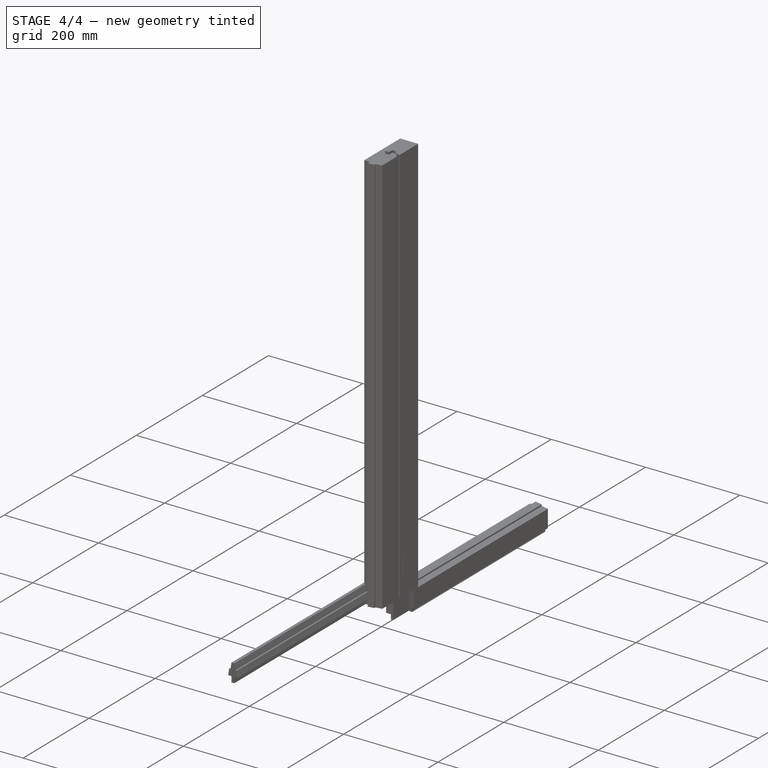
[diagram: stage 4 of 4 — iso view after this stage's code; geometry added in this stage tinted green]
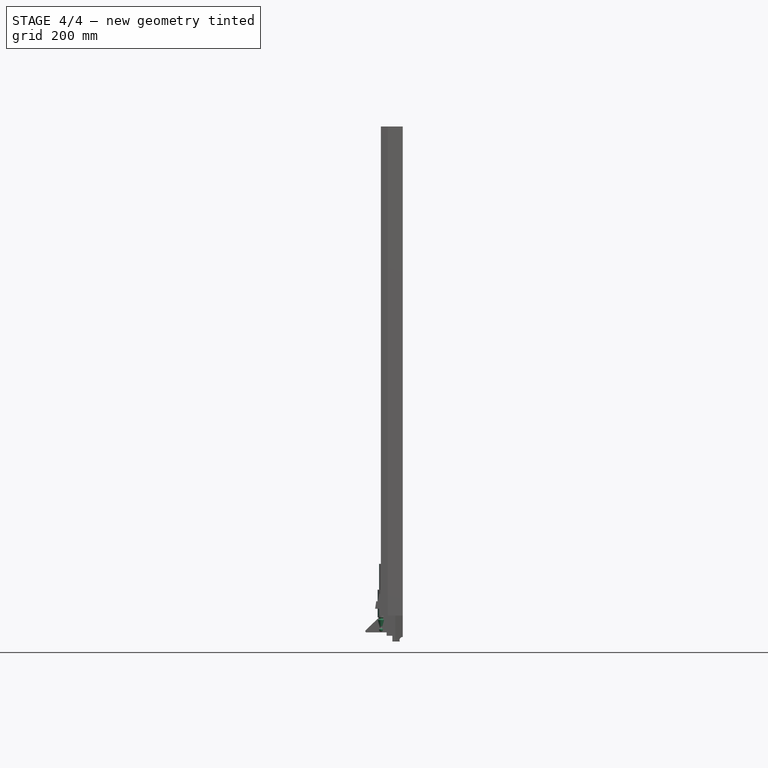
[diagram: stage 4 of 4 — front view after this stage's code; geometry added in this stage tinted green]
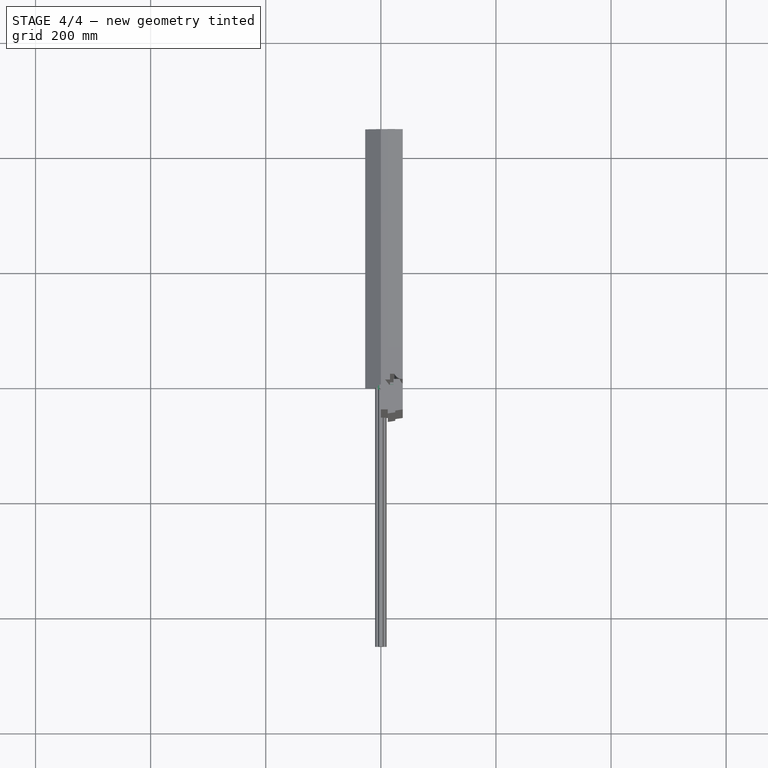
[diagram: stage 4 of 4 — top view after this stage's code; geometry added in this stage tinted green]
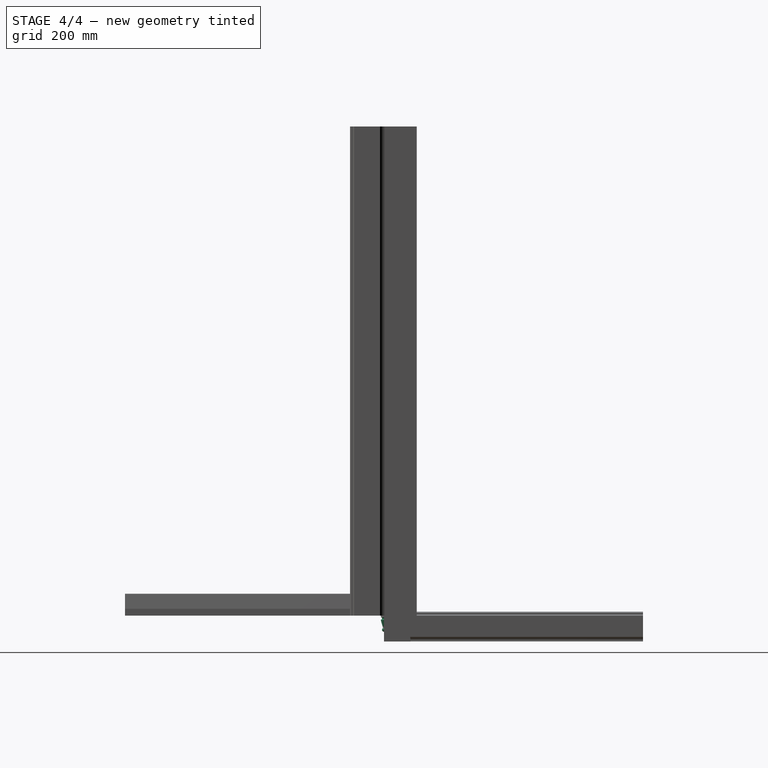
[diagram: stage 4 of 4 — right view after this stage's code; geometry added in this stage tinted green]
FEATURE [Sketcher::SketchObject] Sketch
  ArcFitTolerance = 1e-06
  AttachmentSupport = -> [XZ_Plane]
  FullyConstrained = true
  MapMode = 5
  Placement = pos=(0,0,0) rot=(1,0,0;1.5708rad)
  Support = -> [XZ_Plane]
  TreeRank = 20
  sketch-geometry (9):
    g0: LineSegment StartX=0 StartY=0 StartZ=0 EndX=0 EndY=-28 EndZ=0
    g1: LineSegment StartX=5.46337 StartY=-8.011 StartZ=0 EndX=2.07327 EndY=-20.1887 EndZ=0
    g2: ArcOfCircle CenterX=0 CenterY=-24.5 CenterZ=0 NormalX=0 NormalY=0 NormalZ=1 AngleXU=0 Radius=3.5 StartAngle=4.71239 EndAngle=7.03964
    g3: ArcOfCircle CenterX=5.5 CenterY=-4.91438 CenterZ=0 NormalX=0 NormalY=0 NormalZ=1 AngleXU=0 Radius=2 StartAngle=1.5708 EndAngle=4.37255
    g4: ArcOfCircle CenterX=4.5 CenterY=-7.74281 CenterZ=0 NormalX=0 NormalY=0 NormalZ=1 AngleXU=0 Radius=1 StartAngle=6.01167 EndAngle=7.51414
    g5: ArcOfCircle CenterX=4 CenterY=-20.7251 CenterZ=0 NormalX=0 NormalY=0 NormalZ=1 AngleXU=0 Radius=2 StartAngle=2.87008 EndAngle=3.89805
    g6: LineSegment StartX=5.5 StartY=-2.91438 StartZ=0 EndX=5.5 EndY=0 EndZ=0
    g7: LineSegment StartX=5.5 StartY=0 StartZ=0 EndX=0 EndY=0 EndZ=0
    g8: LineSegment [constr] StartX=5.5 StartY=0 StartZ=0 EndX=5.5 EndY=-10 EndZ=0
  constraints (26):
    c: Vertical(g0)
    c: Coincident(g2,g0)
    c: Radius(g2) = 3.5
    c: DistanceX(g0,g3) = 5.5
    c: Tangent(g1,g4) = 1.5708
    c: Tangent(g2,g5) = 1.5708
    c: Tangent(g1,g5) = -1.5708
    c: Radius(g5) = 2
    c: Radius(g4) = 1
    c: Radius(g3) = 2
    c: DistanceX(g0,g5) = 4
    c: Tangent(g3,g4) = 1.5708
    c: PointOnObject(g2,g0)
    c: Coincident(g6,g7)
    c: Horizontal(g7)
    c: Vertical(g6)
    c: DistanceY(g0,g7) = 28
    c: DistanceY(g3,g7) = 6.8
    c: Coincident(g0,g7)
    c: Coincident(g3,g6)
    c: Coincident(g0,g-1)
    c: Coincident(g8,g6)
    c: Vertical(g8)
    c: Tangent(g8,g4)
    c: PointOnObject(g3,g8)
    c: DistanceY(g8,g8) = 10
FEATURE [PartDesign::Revolution] Revolution
  Angle = 360
  Axis = (0,2e-16,1)
  Base = (0,0,0)
  ClaimChildren = false
  Fit = 0
  FitJoin = 0
  InnerFit = 0
  InnerFitJoin = 0
  NewSolid = false
  Placement = pos=(0,0,0) rot=(1,0,0;1.5708rad)
  Profile = -> Sketch
  ReferenceAxis = -> Sketch [V_Axis]
  Reversed = true
  Suppress = false
  TreeRank = 26
  _ProfileBasedVersion = 1
FEATURE [PartDesign::Body] Body  label="fischband_zierelement"
  AutoGroupSolids = false
  ClaimAllChildren = false
  ExportMode = 0
  Group = -> [Sketch,Revolution]
  Origin = -> Origin001
  Tip = -> Revolution
  TreeRank = 17
  _ExportChildren = -> [Revolution]
  _GroupVersion = 1
FEATURE [Sketcher::SketchObject] Sketch001
  ArcFitTolerance = 1e-06
  AttachmentSupport = -> [XY_Plane001]
  FullyConstrained = true
  MapMode = 5
  Support = -> [XY_Plane001]
  TreeRank = 41
  sketch-geometry (1):
    g0: Circle CenterX=0 CenterY=0 CenterZ=0 NormalX=0 NormalY=0 NormalZ=1 AngleXU=0 Radius=3
  constraints (2):
    c: Coincident(g0,g-1)
    c: Radius(g0) = 3
FEATURE [PartDesign::Pad] Pad
  ClaimChildren = false
  Direction = (1,1,1)
  Fit = 0
  FitJoin = 0
  InnerFit = 0
  InnerFitJoin = 0
  InnerTaperAngle = 0
  InnerTaperAngleRev = 0
  Length = 90
  Length2 = 100
  Linearize = true
  NewSolid = false
  Profile = -> Sketch001
  Suppress = false
  TreeRank = 42
  Type = 0
  _ProfileBasedVersion = 1
FEATURE [PartDesign::Body] Body001  label="fischband_pin"
  AutoGroupSolids = false
  ClaimAllChildren = false
  ExportMode = 0
  Group = -> [Sketch001,Pad]
  Origin = -> Origin002
  Tip = -> Pad
  TreeRank = 38
  _ExportChildren = -> [Pad]
  _GroupVersion = 1
FEATURE [Sketcher::SketchObject] Sketch002
  ArcFitTolerance = 1e-06
  AttachmentSupport = -> [XY_Plane002]
  FullyConstrained = true
  MapMode = 5
  Support = -> [XY_Plane002]
  TreeRank = 57
  sketch-geometry (6):
    g0: ArcOfCircle CenterX=0 CenterY=0 CenterZ=0 NormalX=0 NormalY=0 NormalZ=1 AngleXU=0 Radius=5.5 StartAngle=1.5708 EndAngle=6.97296
    g1: Circle CenterX=0 CenterY=0 CenterZ=0 NormalX=0 NormalY=0 NormalZ=1 AngleXU=0 Radius=3
    g2: LineSegment StartX=0 StartY=5.5 StartZ=0 EndX=25.5 EndY=5.5 EndZ=0
    g3: LineSegment StartX=25.5 StartY=5.5 StartZ=0 EndX=25.5 EndY=3.5 EndZ=0
    g4: LineSegment StartX=25.5 StartY=3.5 StartZ=0 EndX=4.24264 EndY=3.5 EndZ=0
    g5: LineSegment [constr] StartX=5.5 StartY=-2.95389e-05 StartZ=0 EndX=5.5 EndY=5.5 EndZ=0
  constraints (18):
    c: Coincident(g0,g-1)
    c: Radius(g0) = 5.5
    c: Coincident(g1,g0)
    c: Radius(g1) = 3
    c: Coincident(g2,g3)
    c: Coincident(g3,g4)
    c: Horizontal(g2)
    c: Horizontal(g4)
    c: Vertical(g3)
    c: Coincident(g0,g2)
    c: Coincident(g0,g4)
    c: DistanceY(g3,g3) = 2
    c: PointOnObject(g0,g-2)
    c: PointOnObject(g5,g0)
    c: PointOnObject(g5,g2)
    c: Vertical(g5)
    c: Tangent(g5,g0)
    c: DistanceX(g5,g2) = 20
FEATURE [PartDesign::Pad] Pad001
  ClaimChildren = false
  Direction = (1,1,1)
  Fit = 0
  FitJoin = 0
  InnerFit = 0
  InnerFitJoin = 0
  InnerTaperAngle = 0
  InnerTaperAngleRev = 0
  Length = 45
  Length2 = 100
  Linearize = true
  NewSolid = false
  Profile = -> Sketch002
  Suppress = false
  TreeRank = 58
  Type = 0
  _ProfileBasedVersion = 1
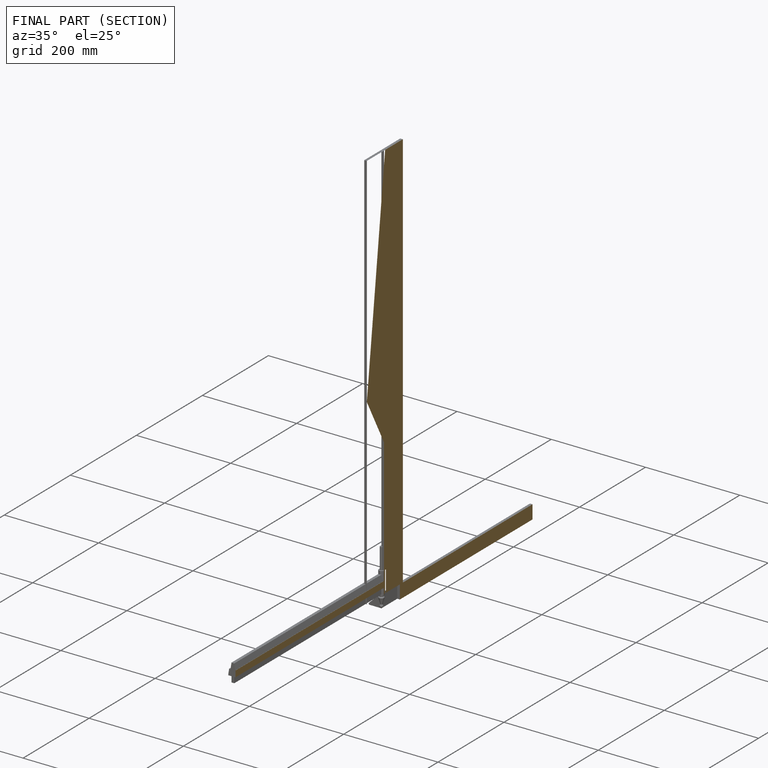
[diagram: finished part — half-section view (interior)]
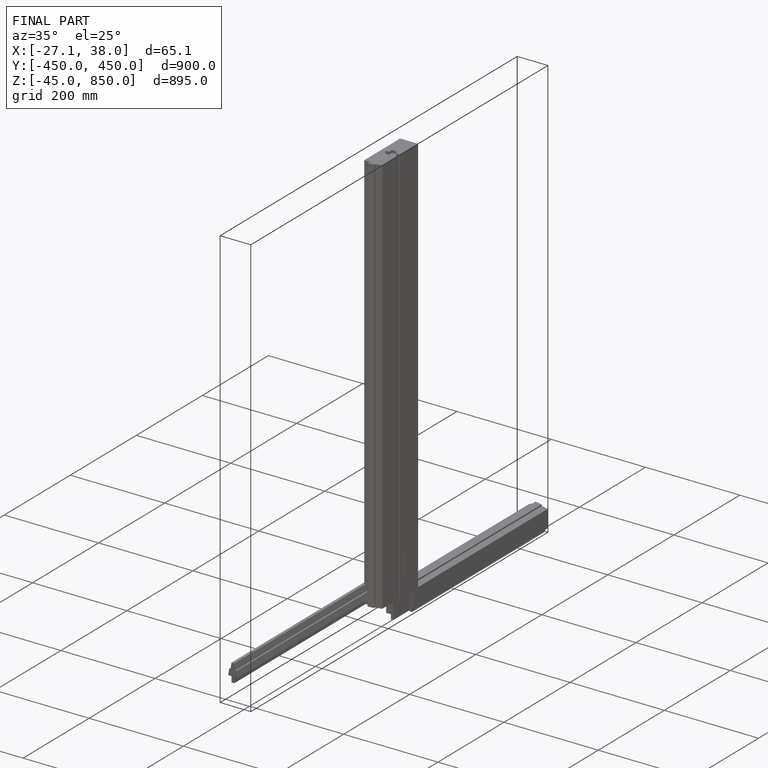
[diagram: finished part — iso view with bounding-box wireframe]
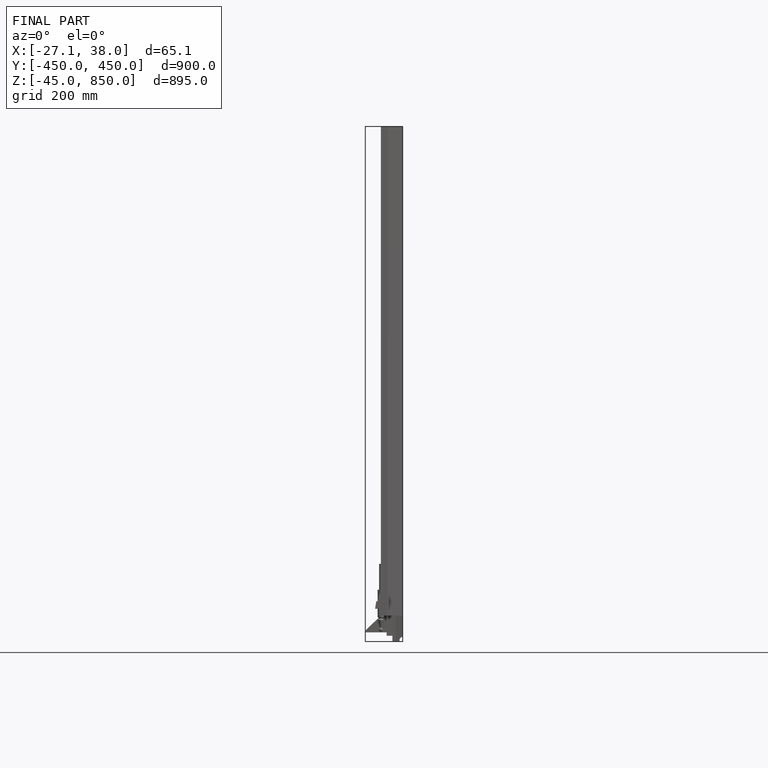
[diagram: finished part — front view with bounding-box wireframe]
